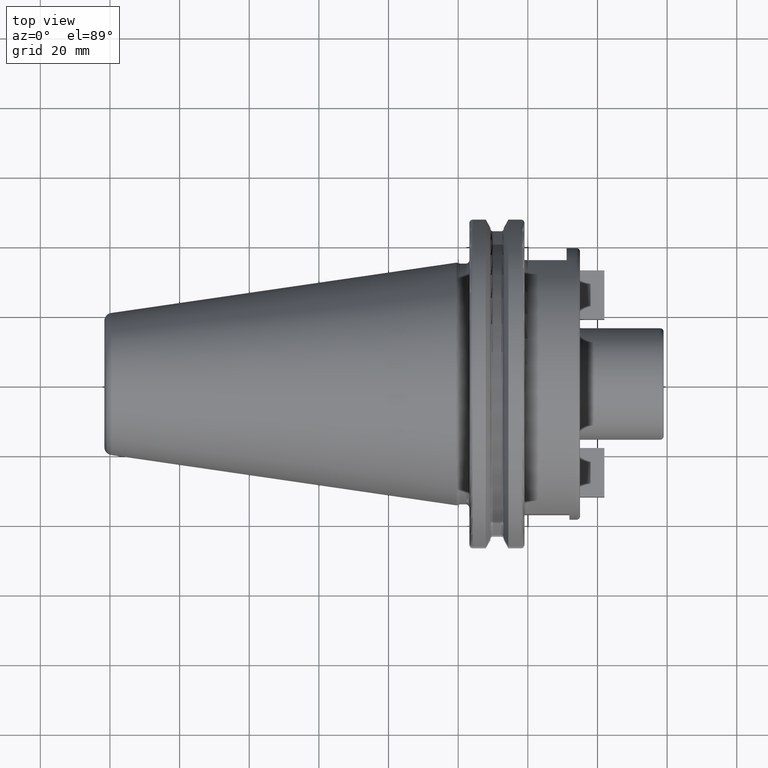
[diagram: clean part render]
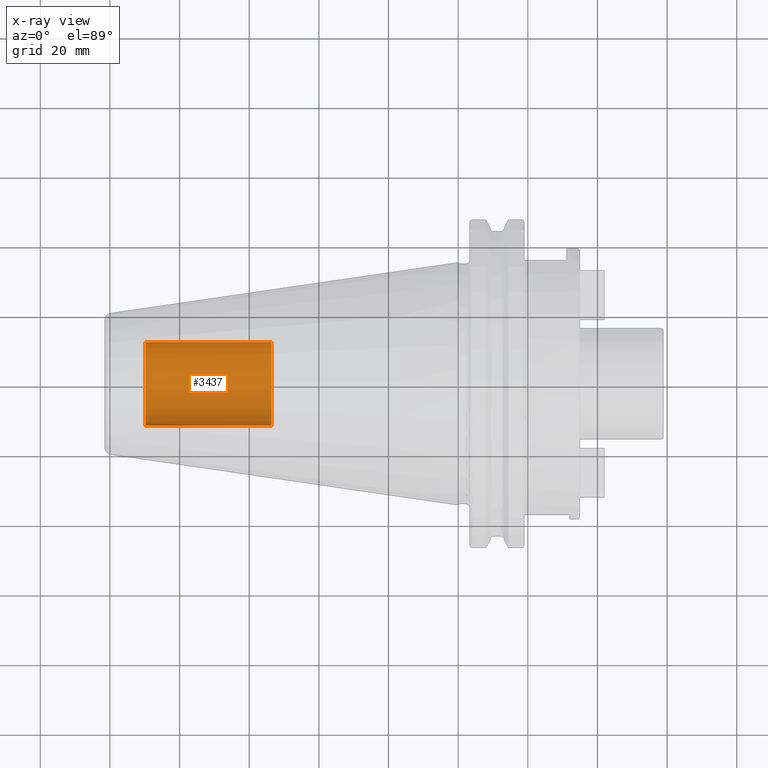
[diagram: x-ray — body ghosted, one internal face saturated and labeled with its STEP entity id]
A machine part, top view, then the same camera in x-ray: the body is ghosted and one INTERNAL B-rep face — a face not visible from any outside direction — is saturated and labeled: STEP entity #3437.
In plain terms, the highlighted cylindrical surface (partial cylindrical patch) has radius 12.0032 mm, axis along (1, 0, 0).
Its self-contained STEP definition (entity closure, byte-faithful):
#3372=CARTESIAN_POINT('',(-8.985E1,0.E0,0.E0));
#3373=DIRECTION('',(-1.E0,0.E0,0.E0));
#3374=DIRECTION('',(0.E0,1.E0,0.E0));
#3375=AXIS2_PLACEMENT_3D('',#3372,#3373,#3374);
#3377=DIRECTION('',(1.E0,0.E0,0.E0));
#3378=VECTOR('',#3377,3.625E1);
#3379=CARTESIAN_POINT('',(-8.985E1,-1.200325E1,0.E0));
#3380=LINE('',#3379,#3378);
#3386=DIRECTION('',(1.E0,0.E0,0.E0));
#3387=VECTOR('',#3386,3.625E1);
#3388=CARTESIAN_POINT('',(-8.985E1,1.200325E1,0.E0));
#3389=LINE('',#3388,#3387);
#3395=CARTESIAN_POINT('',(-5.36E1,0.E0,0.E0));
#3396=DIRECTION('',(1.E0,0.E0,0.E0));
#3397=DIRECTION('',(0.E0,-1.E0,0.E0));
#3398=AXIS2_PLACEMENT_3D('',#3395,#3396,#3397);
#3410=CARTESIAN_POINT('',(-8.985E1,1.200325E1,0.E0));
#3411=CARTESIAN_POINT('',(-8.985E1,-1.200325E1,0.E0));
#3412=VERTEX_POINT('',#3410);
#3413=VERTEX_POINT('',#3411);
#3414=CARTESIAN_POINT('',(-5.36E1,1.200325E1,0.E0));
#3415=CARTESIAN_POINT('',(-5.36E1,-1.200325E1,0.E0));
#3416=VERTEX_POINT('',#3414);
#3417=VERTEX_POINT('',#3415);
#3422=CARTESIAN_POINT('',(-8.985E1,0.E0,0.E0));
#3423=DIRECTION('',(1.E0,0.E0,0.E0));
#3424=DIRECTION('',(0.E0,1.E0,0.E0));
#3425=AXIS2_PLACEMENT_3D('',#3422,#3423,#3424);
#3426=CYLINDRICAL_SURFACE('',#3425,1.200325E1);
#3428=ORIENTED_EDGE('',*,*,#3427,.T.);
#3430=ORIENTED_EDGE('',*,*,#3429,.T.);
#3432=ORIENTED_EDGE('',*,*,#3431,.T.);
#3434=ORIENTED_EDGE('',*,*,#3433,.F.);
#3435=EDGE_LOOP('',(#3428,#3430,#3432,#3434));
#3436=FACE_OUTER_BOUND('',#3435,.F.);
#3437=ADVANCED_FACE('',(#3436),#3426,.T.);
#3376=CIRCLE('',#3375,1.200325E1);
#3399=CIRCLE('',#3398,1.200325E1);
#3427=EDGE_CURVE('',#3412,#3413,#3376,.T.);
#3429=EDGE_CURVE('',#3413,#3417,#3380,.T.);
#3431=EDGE_CURVE('',#3417,#3416,#3399,.T.);
#3433=EDGE_CURVE('',#3412,#3416,#3389,.T.);